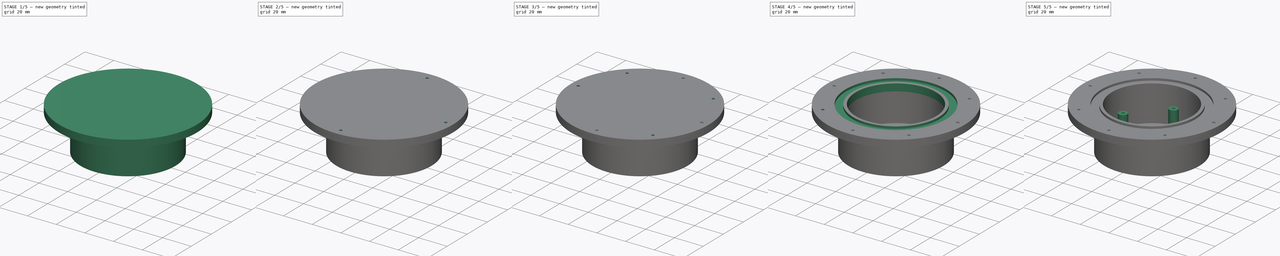
[diagram: build sequence overview — one tinted view per stage of 5, left to right]
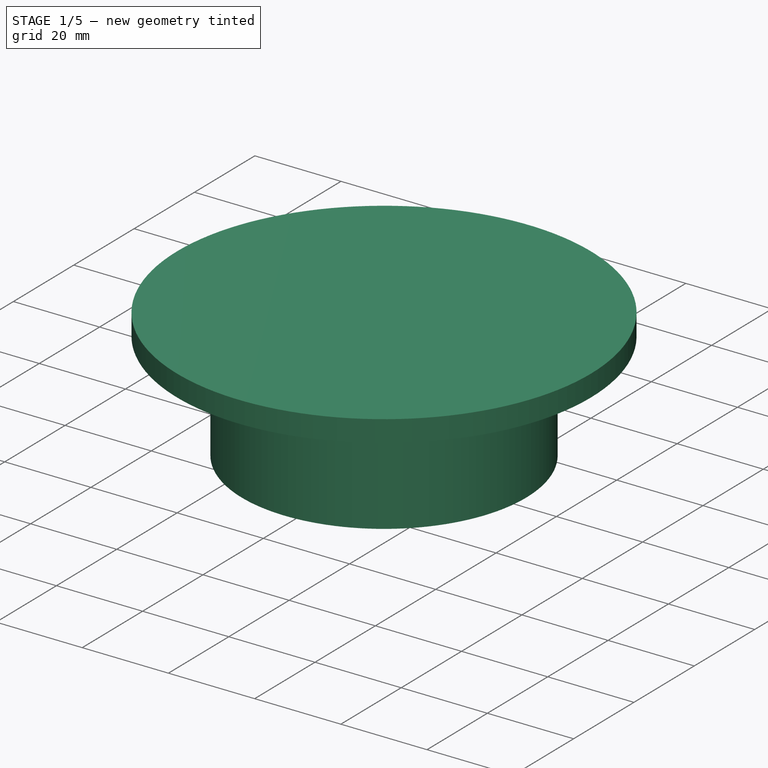
[diagram: stage 1 of 5 — iso view after this stage's code; geometry added in this stage tinted green]
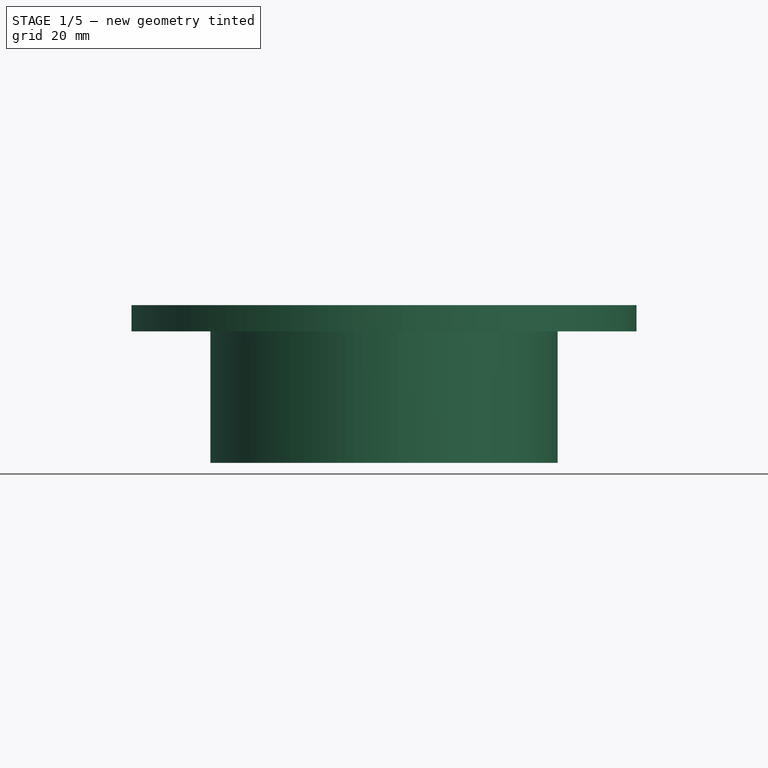
[diagram: stage 1 of 5 — front view after this stage's code; geometry added in this stage tinted green]
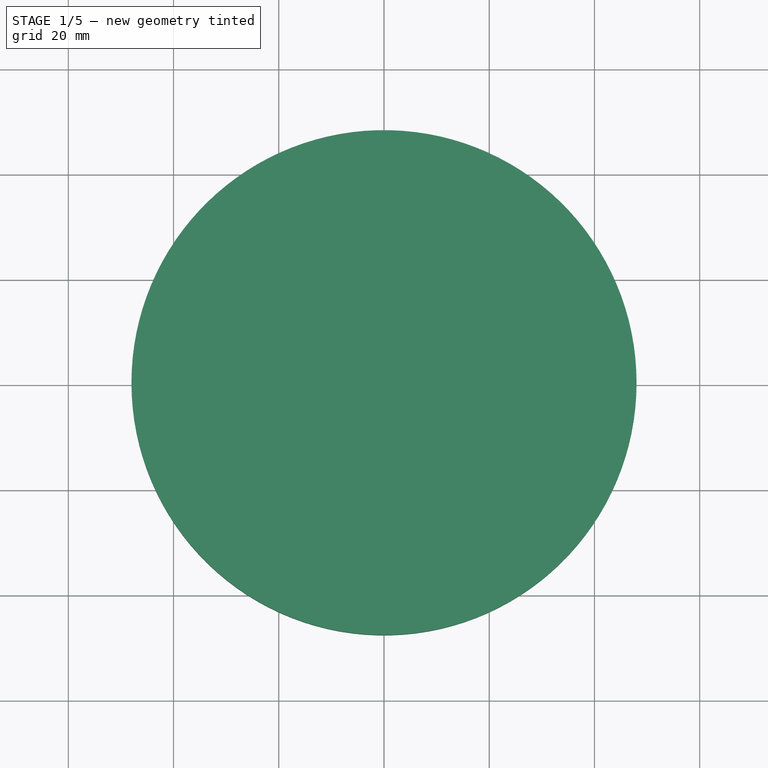
[diagram: stage 1 of 5 — top view after this stage's code; geometry added in this stage tinted green]
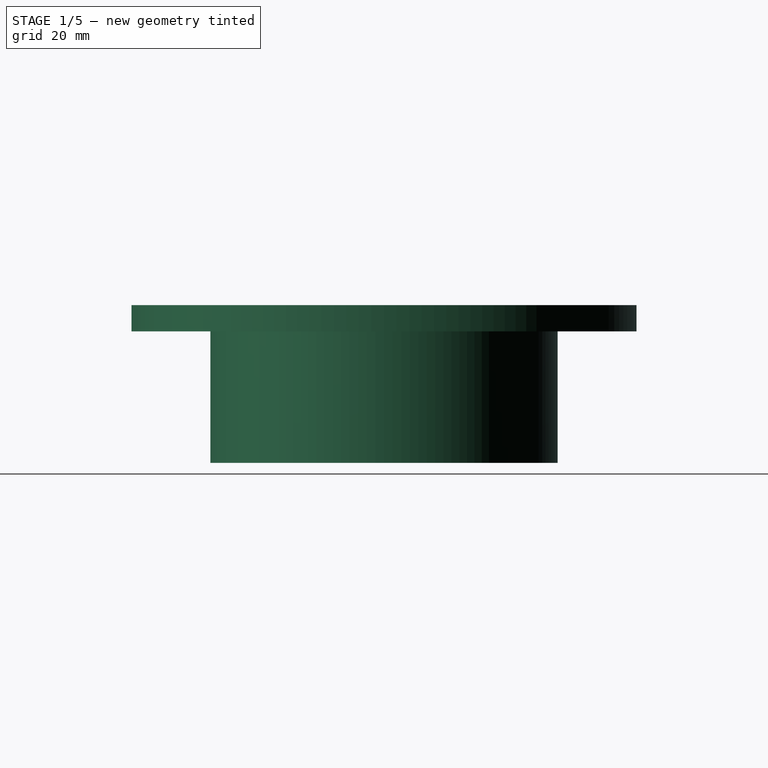
[diagram: stage 1 of 5 — right view after this stage's code; geometry added in this stage tinted green]
FCSTD DOCUMENT  (FreeCAD 0.19R24366 (Git))
Label: enclosure1
License: All rights reserved
LicenseURL: http://en.wikipedia.org/wiki/All_rights_reserved
objects: Sketcher::SketchObject×18, PartDesign::Pocket×11, Part::Feature×5, App::Part×5, App::Link×4, PartDesign::Pad×3, PartDesign::ShapeBinder×2, PartDesign::Groove×1, PartDesign::CoordinateSystem×1, PartDesign::Hole×1, PartDesign::Body×1
note: 59 computed .brp shape members not serialized (recipe doc carries the construction recipe); baked Part::Feature solids carry a one-line shape summary decoded from their .brp

FEATURE [Sketcher::SketchObject] Sketch
  FullyConstrained = true
  MapMode = 5
  Support = -> [XY_Plane]
  sketch-geometry (1):
    g0: Circle CenterX=0 CenterY=0 CenterZ=0 NormalX=0 NormalY=0 NormalZ=1 AngleXU=0 Radius=33
  constraints (2):
    c: Coincident(g0,g-1)
    c: Radius(g0) = 33
FEATURE [PartDesign::Pad] Pad
  Direction = (1,1,1)
  Length = 25
  Length2 = 100
  Profile = -> Sketch
  Reversed = true
  Type = 0
FEATURE [Sketcher::SketchObject] Sketch001
  FullyConstrained = true
  MapMode = 5
  Support = -> [XY_Plane]
  sketch-geometry (1):
    g0: Circle CenterX=0 CenterY=0 CenterZ=0 NormalX=0 NormalY=0 NormalZ=1 AngleXU=0 Radius=28
  constraints (2):
    c: Coincident(g0,g-1)
    c: Radius(g0) = 28
FEATURE [PartDesign::Pocket] Pocket
  BaseFeature = -> Pad
  Length = 20
  Length2 = 100
  Profile = -> Sketch001
  Type = 0
FEATURE [Sketcher::SketchObject] Sketch002
  FullyConstrained = true
  MapMode = 5
  Support = -> [XY_Plane]
  sketch-geometry (1):
    g0: Circle CenterX=0 CenterY=0 CenterZ=0 NormalX=0 NormalY=0 NormalZ=1 AngleXU=0 Radius=48
  constraints (2):
    c: Coincident(g0,g-1)
    c: Radius(g0) = 48
FEATURE [PartDesign::Pad] Pad001
  BaseFeature = -> Pocket
  Direction = (1,1,1)
  Length = 5
  Length2 = 100
  Profile = -> Sketch002
  Type = 0
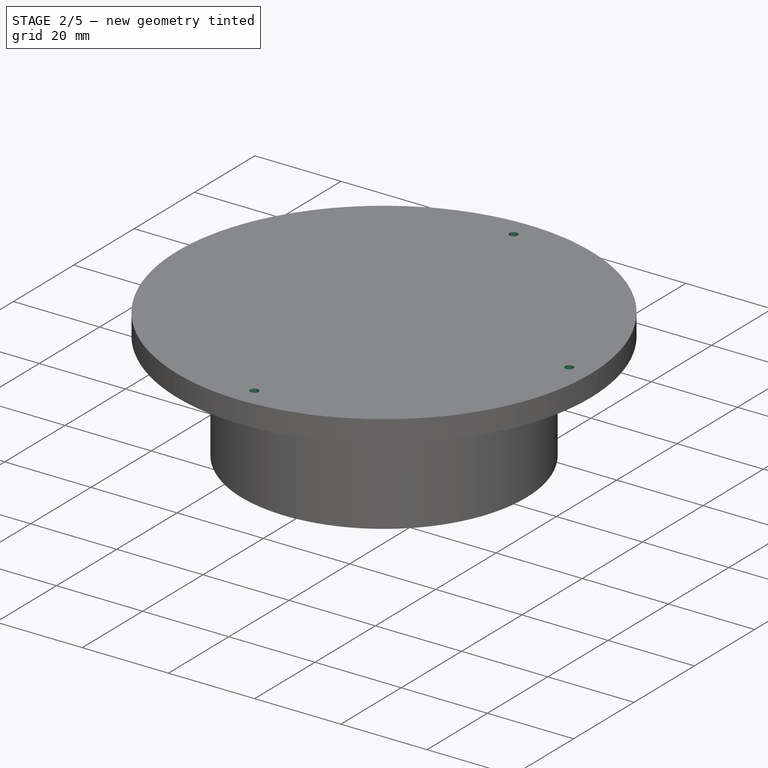
[diagram: stage 2 of 5 — iso view after this stage's code; geometry added in this stage tinted green]
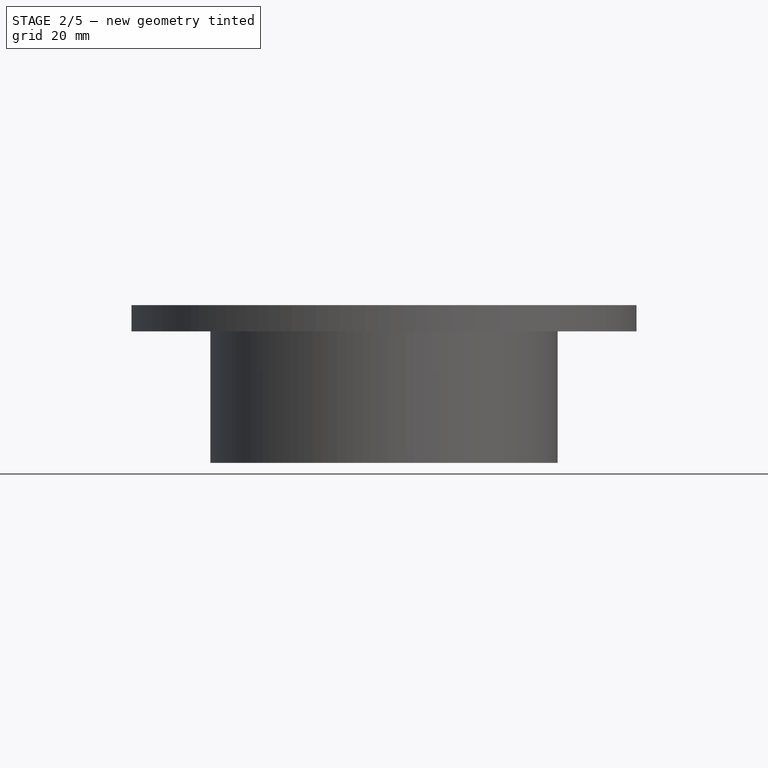
[diagram: stage 2 of 5 — front view after this stage's code; geometry added in this stage tinted green]
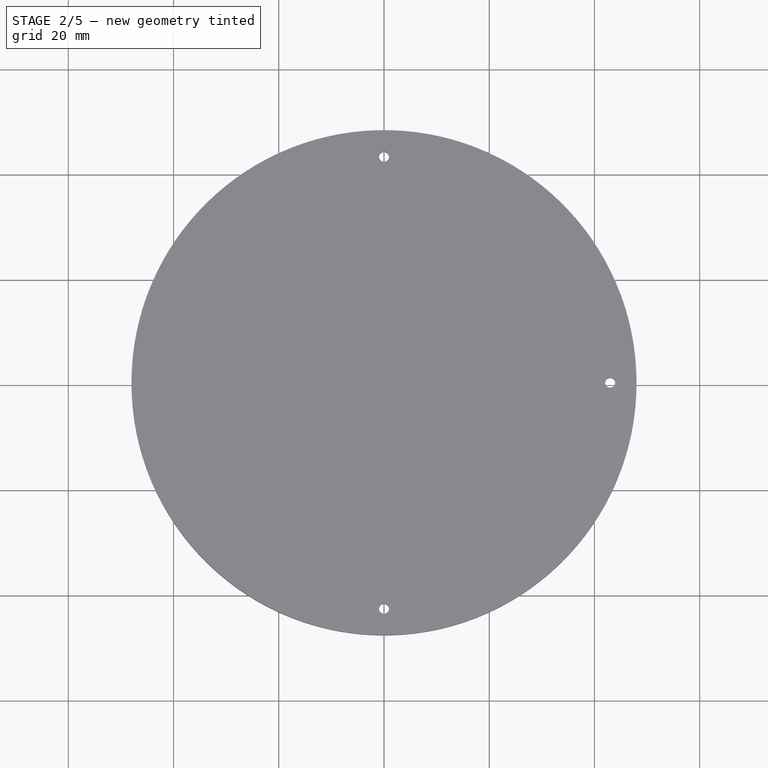
[diagram: stage 2 of 5 — top view after this stage's code; geometry added in this stage tinted green]
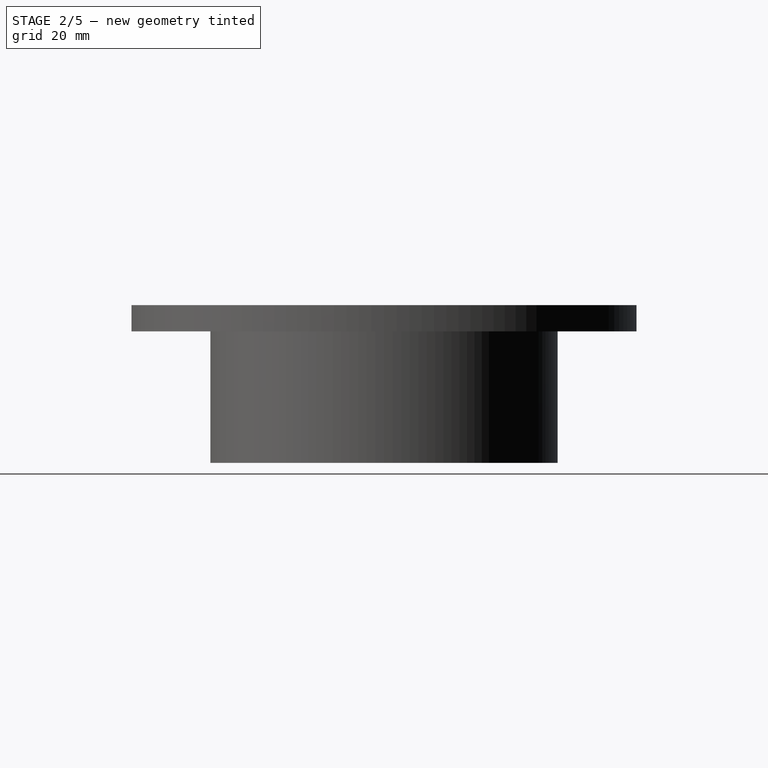
[diagram: stage 2 of 5 — right view after this stage's code; geometry added in this stage tinted green]
FEATURE [Sketcher::SketchObject] Sketch003
  FullyConstrained = true
  MapMode = 5
  Support = -> [XY_Plane]
  sketch-geometry (1):
    g0: Circle CenterX=0 CenterY=0 CenterZ=0 NormalX=0 NormalY=0 NormalZ=1 AngleXU=0 Radius=28
  constraints (2):
    c: Coincident(g0,g-1)
    c: Radius(g0) = 28
FEATURE [PartDesign::ShapeBinder] ShapeBinder
  TraceSupport = false
FEATURE [Sketcher::SketchObject] Sketch005
  FullyConstrained = false
  MapMode = 5
  Placement = pos=(0,0,5) rot=(0,0,1;0rad)
  Support = -> [ShapeBinder]
  sketch-geometry (1):
    g0: Circle CenterX=0 CenterY=42.9435 CenterZ=0 NormalX=0 NormalY=0 NormalZ=1 AngleXU=0 Radius=0.95
  constraints (2):
    c: PointOnObject(g0,g-2)
    c: Diameter(g0) = 1.9
FEATURE [PartDesign::Pocket] Pocket002
  BaseFeature = -> Pad001
  Length = 5
  Length2 = 100
  Profile = -> Sketch005
  Type = 0
FEATURE [Sketcher::SketchObject] Sketch006
  FullyConstrained = false
  MapMode = 5
  Placement = pos=(0,0,5) rot=(0,0,1;0rad)
  Support = -> [ShapeBinder]
  sketch-geometry (1):
    g0: Circle CenterX=0 CenterY=-42.9576 CenterZ=0 NormalX=0 NormalY=0 NormalZ=1 AngleXU=0 Radius=0.95
  constraints (2):
    c: PointOnObject(g0,g-2)
    c: Diameter(g0) = 1.9
FEATURE [PartDesign::Pocket] Pocket003
  BaseFeature = -> Pocket002
  Length = 5
  Length2 = 100
  Profile = -> Sketch006
  Type = 0
FEATURE [Sketcher::SketchObject] Sketch007
  FullyConstrained = false
  MapMode = 5
  Placement = pos=(0,0,5) rot=(0,0,1;0rad)
  Support = -> [ShapeBinder]
  sketch-geometry (1):
    g0: Circle CenterX=42.9898 CenterY=0 CenterZ=0 NormalX=0 NormalY=0 NormalZ=1 AngleXU=0 Radius=0.95
  constraints (2):
    c: PointOnObject(g0,g-1)
    c: Diameter(g0) = 1.9
FEATURE [PartDesign::Pocket] Pocket004
  BaseFeature = -> Pocket003
  Length = 5
  Length2 = 100
  Profile = -> Sketch007
  Type = 0
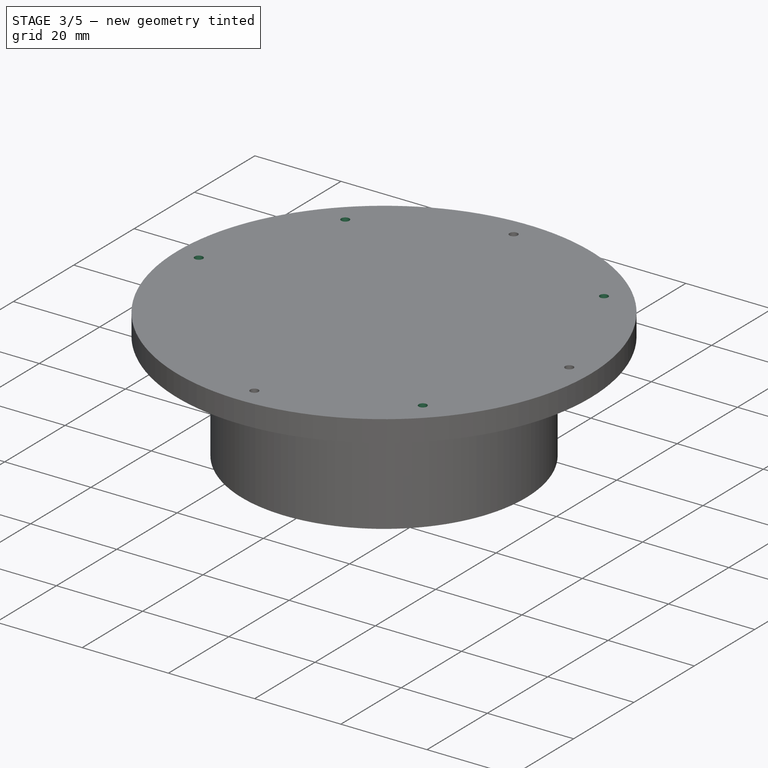
[diagram: stage 3 of 5 — iso view after this stage's code; geometry added in this stage tinted green]
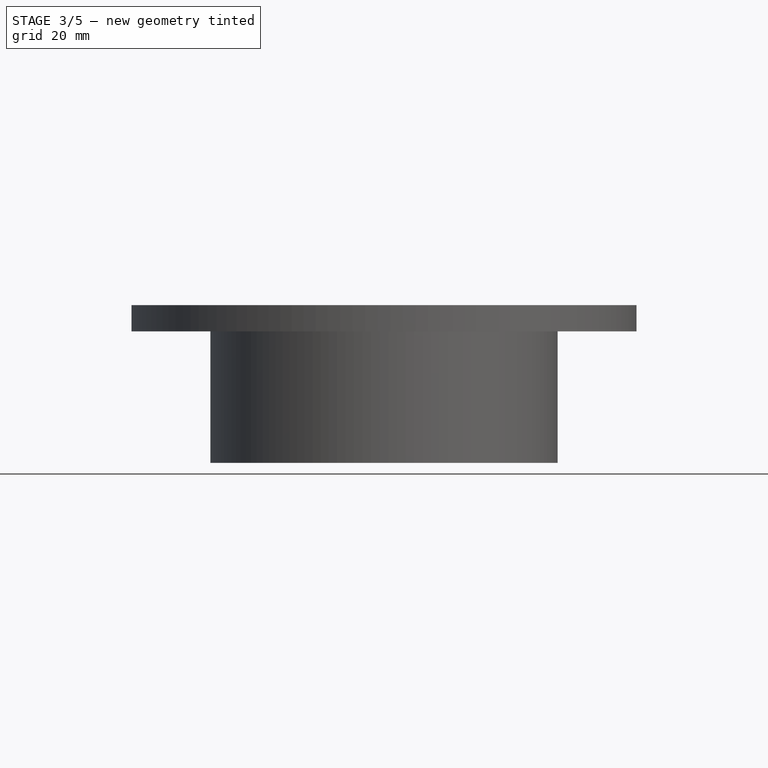
[diagram: stage 3 of 5 — front view after this stage's code; geometry added in this stage tinted green]
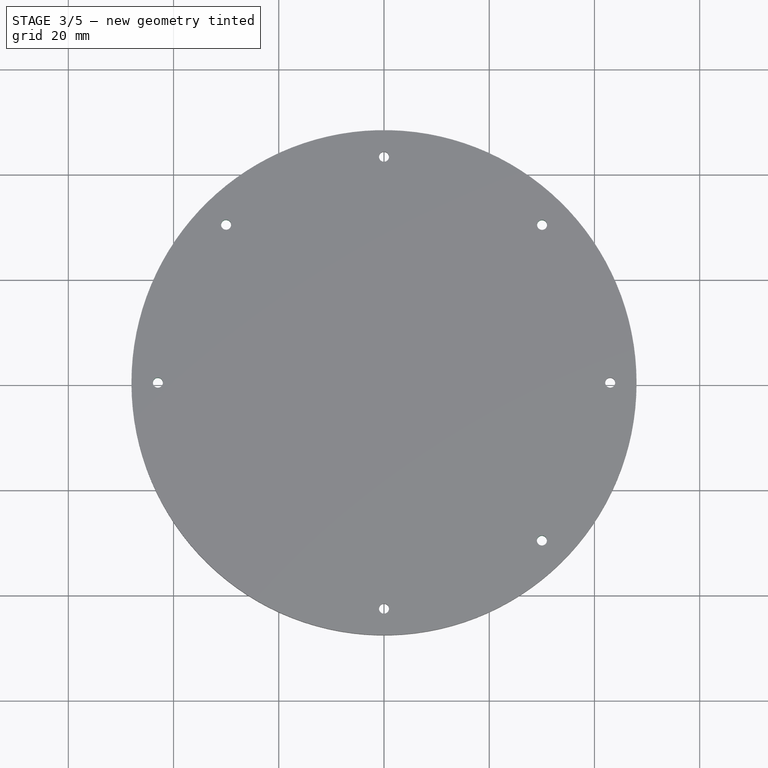
[diagram: stage 3 of 5 — top view after this stage's code; geometry added in this stage tinted green]
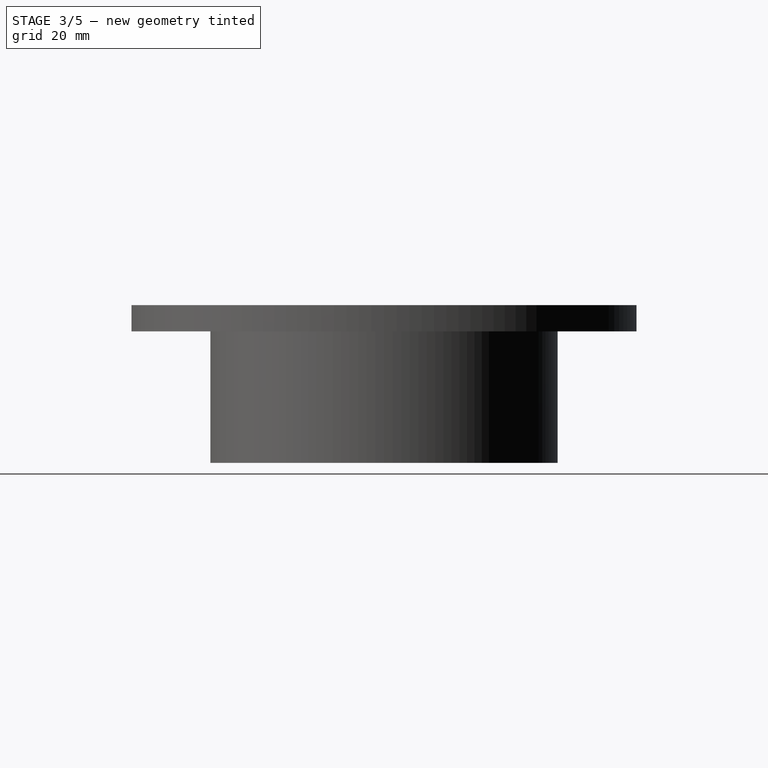
[diagram: stage 3 of 5 — right view after this stage's code; geometry added in this stage tinted green]
FEATURE [Sketcher::SketchObject] Sketch008
  FullyConstrained = false
  MapMode = 5
  Placement = pos=(0,0,5) rot=(0,0,1;0rad)
  Support = -> [ShapeBinder]
  sketch-geometry (1):
    g0: Circle CenterX=-42.9736 CenterY=0 CenterZ=0 NormalX=0 NormalY=0 NormalZ=1 AngleXU=0 Radius=0.95
  constraints (2):
    c: PointOnObject(g0,g-1)
    c: Diameter(g0) = 1.9
FEATURE [PartDesign::Pocket] Pocket005
  BaseFeature = -> Pocket004
  Length = 5
  Length2 = 100
  Profile = -> Sketch008
  Type = 0
FEATURE [Sketcher::SketchObject] Sketch010
  FullyConstrained = false
  MapMode = 5
  Placement = pos=(0,0,5) rot=(0,0,1;0rad)
  Support = -> [ShapeBinder]
  sketch-geometry (1):
    g0: Circle CenterX=30.044 CenterY=29.9904 CenterZ=0 NormalX=0 NormalY=0 NormalZ=1 AngleXU=0 Radius=0.95
  constraints (1):
    c: Diameter(g0) = 1.9
FEATURE [PartDesign::Pocket] Pocket006
  BaseFeature = -> Pocket005
  Length = 5
  Length2 = 100
  Profile = -> Sketch010
  Type = 0
FEATURE [Sketcher::SketchObject] Sketch011
  FullyConstrained = false
  MapMode = 5
  Placement = pos=(0,0,5) rot=(0,0,1;0rad)
  Support = -> [ShapeBinder]
  sketch-geometry (1):
    g0: Circle CenterX=-30.0137 CenterY=30.0171 CenterZ=0 NormalX=0 NormalY=0 NormalZ=1 AngleXU=0 Radius=0.95
  constraints (1):
    c: Diameter(g0) = 1.9
FEATURE [PartDesign::Pocket] Pocket007
  BaseFeature = -> Pocket006
  Length = 5
  Length2 = 100
  Profile = -> Sketch011
  Type = 0
FEATURE [Sketcher::SketchObject] Sketch012
  FullyConstrained = false
  MapMode = 5
  Placement = pos=(0,0,5) rot=(0,0,1;0rad)
  Support = -> [ShapeBinder]
  sketch-geometry (1):
    g0: Circle CenterX=30.0099 CenterY=-30.0046 CenterZ=0 NormalX=0 NormalY=0 NormalZ=1 AngleXU=0 Radius=0.95
  constraints (1):
    c: Diameter(g0) = 1.9
FEATURE [PartDesign::Pocket] Pocket008
  BaseFeature = -> Pocket007
  Length = 5
  Length2 = 100
  Profile = -> Sketch012
  Type = 0
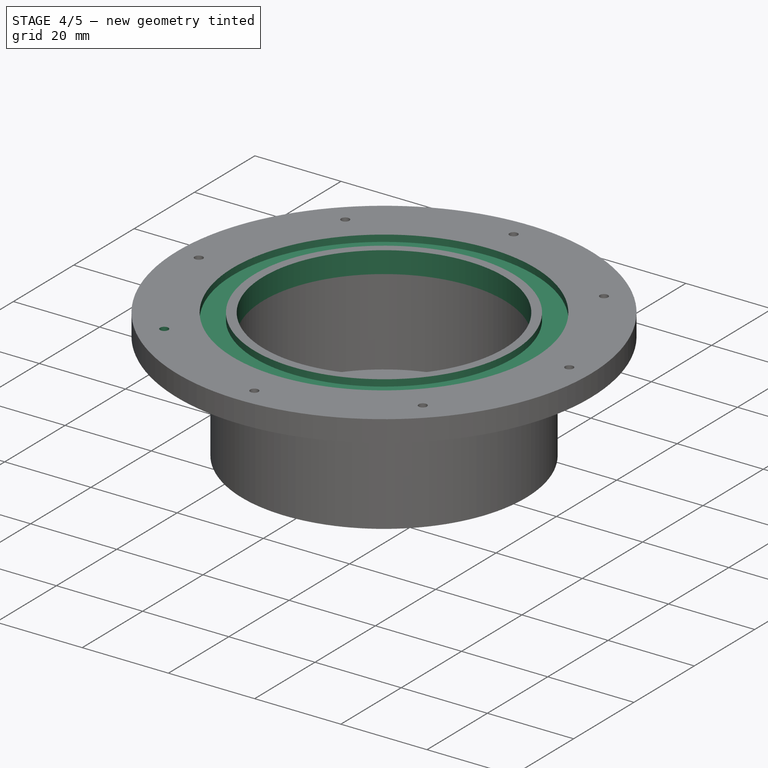
[diagram: stage 4 of 5 — iso view after this stage's code; geometry added in this stage tinted green]
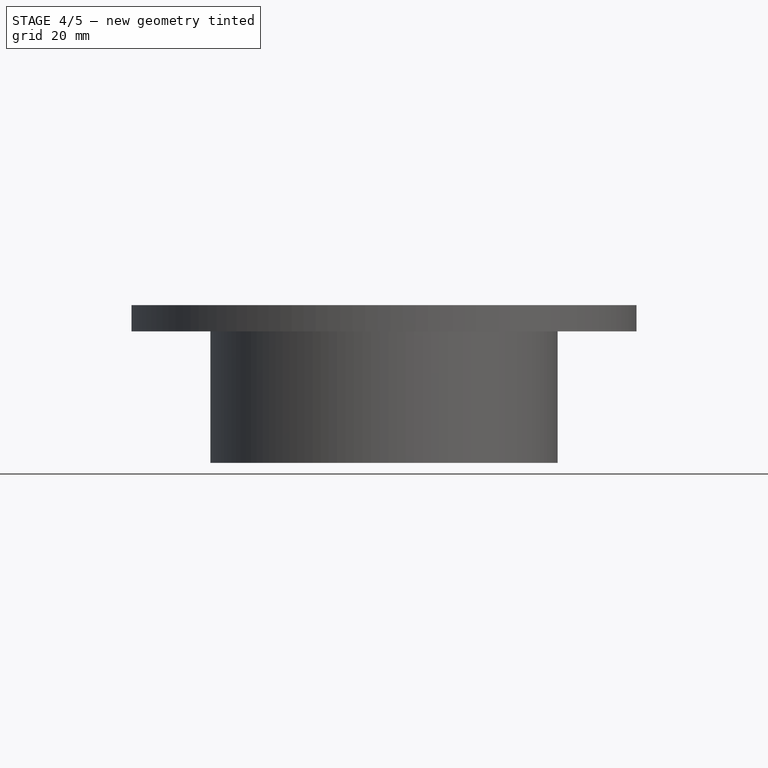
[diagram: stage 4 of 5 — front view after this stage's code; geometry added in this stage tinted green]
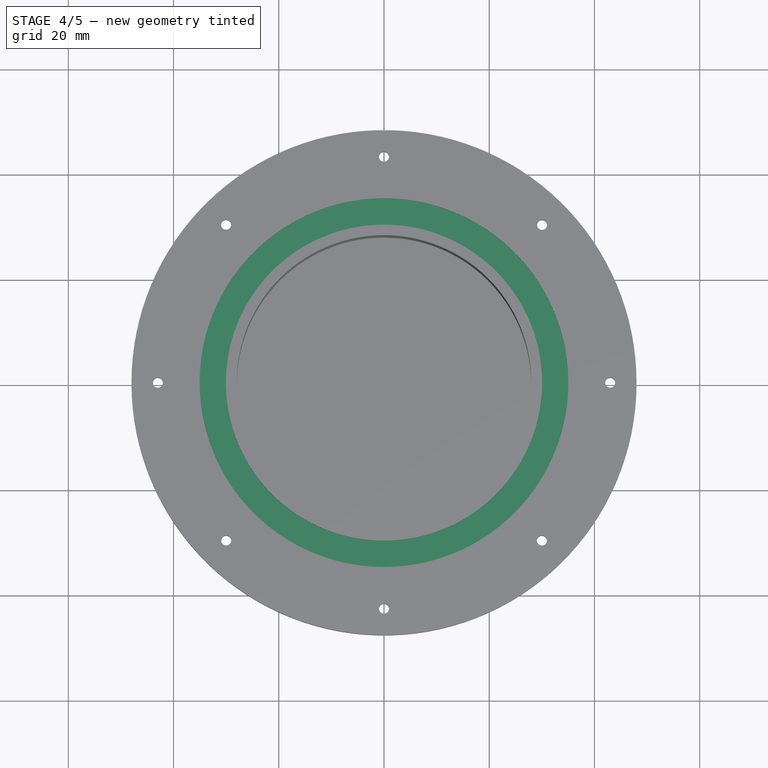
[diagram: stage 4 of 5 — top view after this stage's code; geometry added in this stage tinted green]
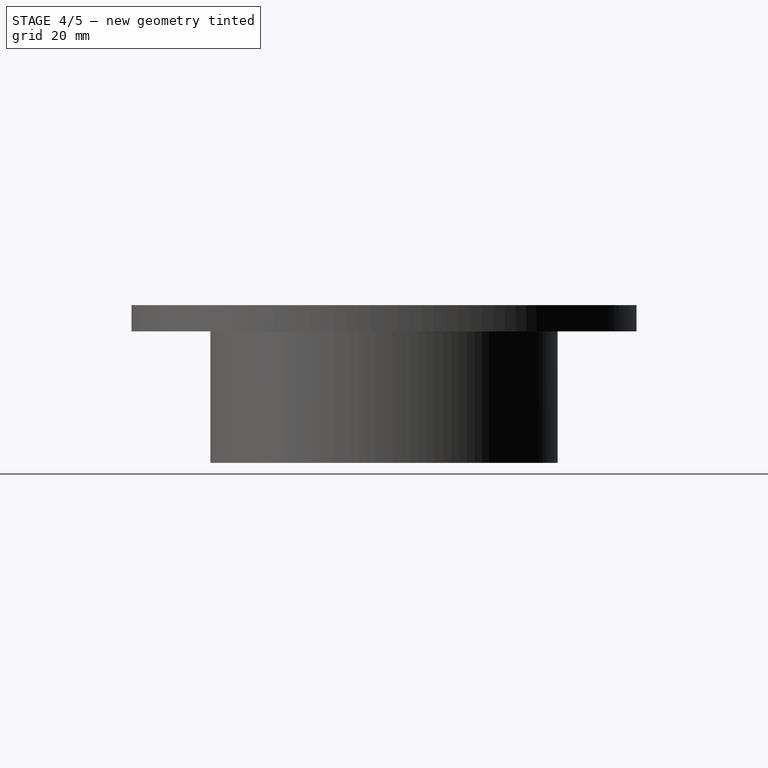
[diagram: stage 4 of 5 — right view after this stage's code; geometry added in this stage tinted green]
FEATURE [Sketcher::SketchObject] Sketch013
  FullyConstrained = false
  MapMode = 5
  Placement = pos=(0,0,5) rot=(0,0,1;0rad)
  Support = -> [ShapeBinder]
  sketch-geometry (1):
    g0: Circle CenterX=-29.9845 CenterY=-30.0004 CenterZ=0 NormalX=0 NormalY=0 NormalZ=1 AngleXU=0 Radius=0.95
  constraints (1):
    c: Diameter(g0) = 1.9
FEATURE [PartDesign::Pocket] Pocket009
  BaseFeature = -> Pocket008
  Length = 5
  Length2 = 100
  Profile = -> Sketch013
  Type = 0
FEATURE [Sketcher::SketchObject] Sketch015
  FullyConstrained = false
  MapMode = 5
  Placement = pos=(0,0,0) rot=(0.57735,0.57735,0.57735;2.0944rad)
  Support = -> [YZ_Plane]
  sketch-geometry (4):
    g0: LineSegment StartX=30.0443 StartY=5.00876 StartZ=0 EndX=35.0402 EndY=5.00876 EndZ=0
    g1: LineSegment StartX=35.0402 StartY=5.00876 StartZ=0 EndX=35.0402 EndY=3.46525 EndZ=0
    g2: LineSegment StartX=35.0402 StartY=3.46525 StartZ=0 EndX=30.0443 EndY=3.46525 EndZ=0
    g3: LineSegment StartX=30.0443 StartY=3.46525 StartZ=0 EndX=30.0443 EndY=5.00876 EndZ=0
  constraints (8):
    c: Coincident(g0,g1)
    c: Coincident(g1,g2)
    c: Coincident(g2,g3)
    c: Coincident(g3,g0)
    c: Horizontal(g0)
    c: Horizontal(g2)
    c: Vertical(g1)
    c: Vertical(g3)
FEATURE [PartDesign::Groove] Groove
  Angle = 360
  Axis = (-2e-16,3e-16,1)
  Base = (0,0,0)
  BaseFeature = -> Pocket009
  Profile = -> Sketch015
  ReferenceAxis = -> Sketch015 [V_Axis]
FEATURE [Sketcher::SketchObject] Sketch016
  FullyConstrained = true
  MapMode = 5
  Placement = pos=(0,0,5) rot=(0,0,1;0rad)
  Support = -> [ShapeBinder]
  sketch-geometry (1):
    g0: Circle CenterX=0 CenterY=0 CenterZ=0 NormalX=0 NormalY=0 NormalZ=1 AngleXU=0 Radius=28
  constraints (2):
    c: Coincident(g0,g-1)
    c: Radius(g0) = 28
FEATURE [PartDesign::Pocket] Pocket010
  BaseFeature = -> Groove
  Length = 5
  Length2 = 100
  Profile = -> Sketch016
  Type = 0
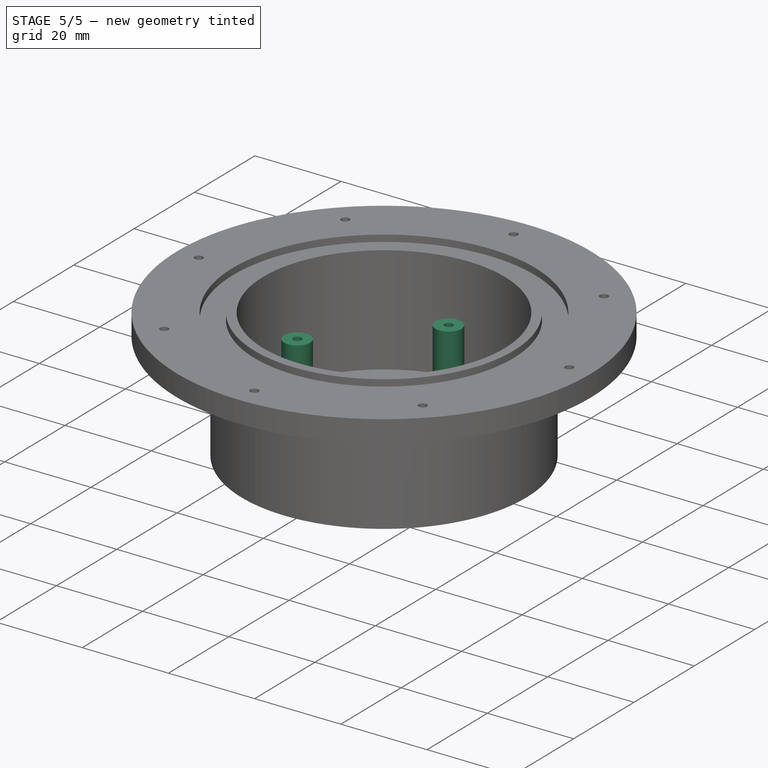
[diagram: stage 5 of 5 — iso view after this stage's code; geometry added in this stage tinted green]
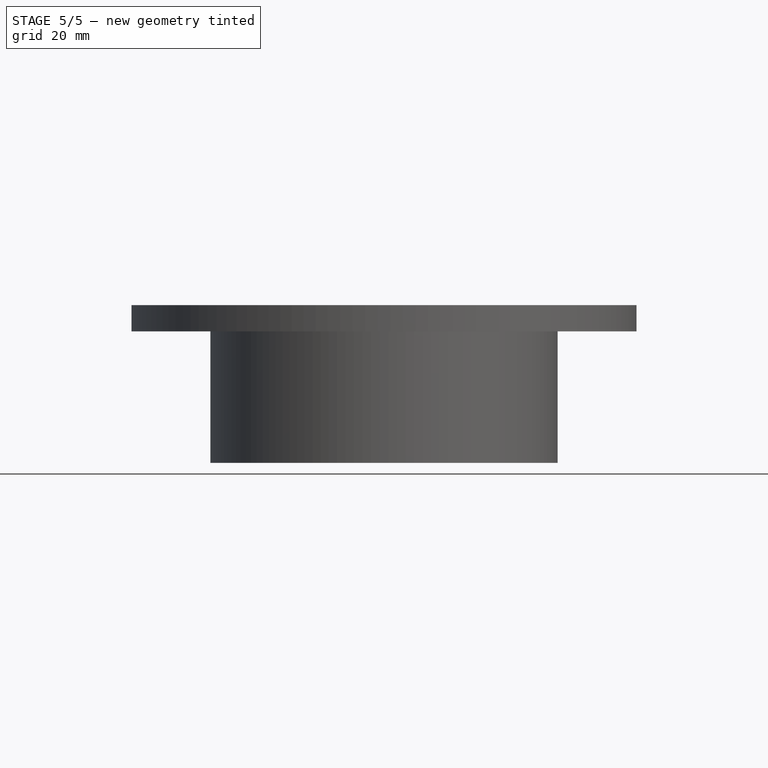
[diagram: stage 5 of 5 — front view after this stage's code; geometry added in this stage tinted green]
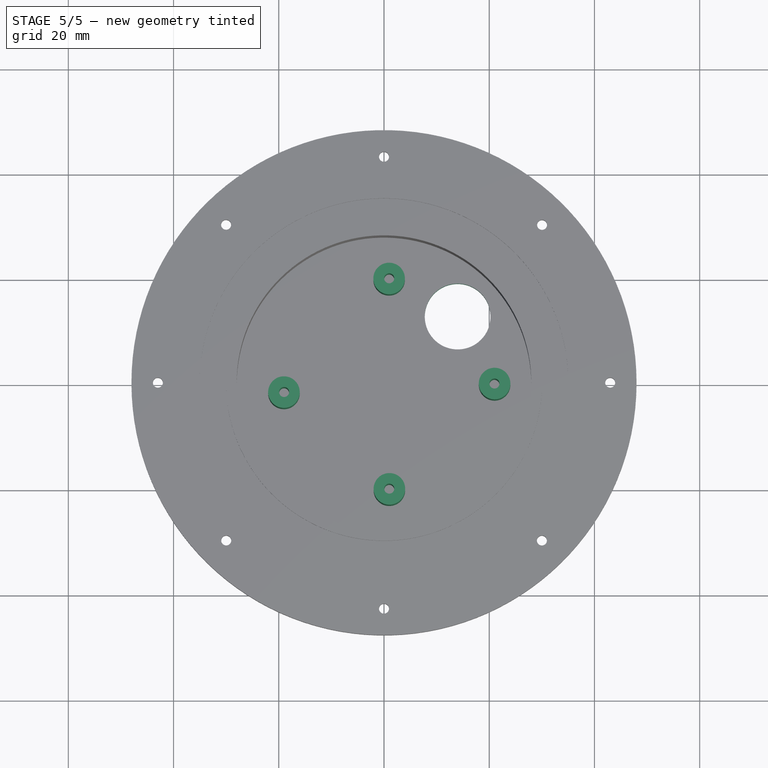
[diagram: stage 5 of 5 — top view after this stage's code; geometry added in this stage tinted green]
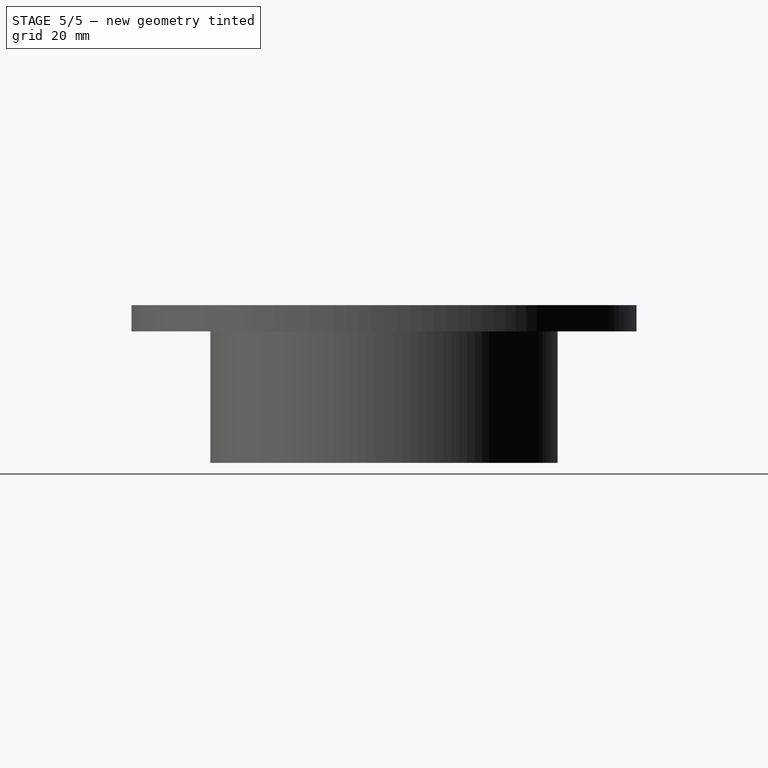
[diagram: stage 5 of 5 — right view after this stage's code; geometry added in this stage tinted green]
FEATURE [PartDesign::ShapeBinder] ShapeBinder001
  Placement = pos=(0,0,-20) rot=(0,0,1;0rad)
  Support = -> [Pocket010]
  TraceSupport = false
FEATURE [PartDesign::CoordinateSystem] Local_CS_9147
  AttacherType = Attacher::AttachEngine3D
FEATURE [Part::Feature] Pcb_9147
  shape: bbox 50 x 50 x 1.6 mm, 51 faces (baked)
FEATURE [Sketcher::SketchObject] PCB_Sketch_9147
  FullyConstrained = false
  sketch-geometry (1):
    g0: Circle CenterX=150 CenterY=-90 CenterZ=0 NormalX=0 NormalY=0 NormalZ=1 AngleXU=0 Radius=25
FEATURE [App::Part] Board_Geoms_9147
  Group = -> [Local_CS_9147,Pcb_9147,PCB_Sketch_9147]
  Origin = -> Origin002
FEATURE [Part::Feature] Shape  label="R2_R_0603_1608Metric_18504254b625"
  Placement = pos=(163,-94,0) rot=(0,0,1;1.5708rad)
  shape: bbox 0.8 x 1.6 x 0.45 mm, 26 faces (baked)
FEATURE [App::Link] R2_R_0603_1608Metric_18504254b625_ln_  label="R1_R_0603_1608Metric_ea0b41d80b0a"
  LinkPlacement = pos=(165,-94,0) rot=(0,0,1;1.5708rad)
  LinkedObject = -> Shape
  Placement = pos=(165,-94,0) rot=(0,0,1;1.5708rad)
FEATURE [Part::Feature] Shape001  label="C1_C_0603_1608Metric_25f668334653"
  Placement = pos=(133.985,-91.44,0) rot=(0,0,1;1.5708rad)
  shape: bbox 0.8 x 1.6 x 0.8 mm, 28 faces (baked)
FEATURE [Part::Feature] Shape002  label="U3_QFN-32-1EP_5x5mm_Pitch0.5mm_34379c8f1efa"
  Placement = pos=(161,-73,0) rot=(0,0,1;0rad)
  shape: bbox 5 x 5 x 0.77 mm, 206 faces (baked)
FEATURE [Part::Feature] Shape003  label="BT1_Keystone_1060_1x2032_c739e21a0837"
  Placement = pos=(150,-90,0) rot=(0,0,-1;1.5708rad)
  shape: bbox 17.96 x 31.86 x 5.08 mm, 94 faces (baked)
FEATURE [App::Part] Top_9147
  Group = -> [Shape,R2_R_0603_1608Metric_18504254b625_ln_,Shape001,Shape002,Shape003]
  Origin = -> Origin004
FEATURE [App::Link] C1_C_0603_1608Metric_25f668334653_ln_  label="C3_C_0603_1608Metric_906acf72987c"
  LinkPlacement = pos=(162,-72,-1.6) rot=(0.707107,0.707107,0;3.14159rad)
  LinkedObject = -> Shape001
  Placement = pos=(162,-72,-1.6) rot=(0.707107,0.707107,0;3.14159rad)
FEATURE [App::Link] C1_C_0603_1608Metric_25f668334653_ln_001  label="C4_C_0603_1608Metric_0a1d6cc33d50"
  LinkPlacement = pos=(161,-75,-1.6) rot=(0,1,0;3.14159rad)
  LinkedObject = -> Shape001
  Placement = pos=(161,-75,-1.6) rot=(0,1,0;3.14159rad)
FEATURE [App::Link] C1_C_0603_1608Metric_25f668334653_ln_002  label="C2_C_0603_1608Metric_d8f244a3c23f"
  LinkPlacement = pos=(160,-72,-1.6) rot=(0.707107,0.707107,0;3.14159rad)
  LinkedObject = -> Shape001
  Placement = pos=(160,-72,-1.6) rot=(0.707107,0.707107,0;3.14159rad)
FEATURE [App::Part] Bot_9147
  Group = -> [C1_C_0603_1608Metric_25f668334653_ln_,C1_C_0603_1608Metric_25f668334653_ln_001,C1_C_0603_1608Metric_25f668334653_ln_002]
  Origin = -> Origin005
FEATURE [App::Part] Step_Models_9147
  Group = -> [Top_9147,Bot_9147]
  Origin = -> Origin003
FEATURE [App::Part] Board_9147  label="lab7"
  Group = -> [Board_Geoms_9147,Step_Models_9147]
  Origin = -> Origin001
  Placement = pos=(-149,-90,-1) rot=(1,0,0;3.14159rad)
FEATURE [Sketcher::SketchObject] Sketch017
  FullyConstrained = false
  MapMode = 5
  Placement = pos=(0,0,-20) rot=(0,0,1;0rad)
  Support = -> [ShapeBinder001]
  sketch-geometry (4):
    g0: Circle CenterX=0.969611 CenterY=19.9684 CenterZ=0 NormalX=0 NormalY=0 NormalZ=1 AngleXU=0 Radius=3
    g1: Circle CenterX=21.0161 CenterY=0 CenterZ=0 NormalX=0 NormalY=0 NormalZ=1 AngleXU=0 Radius=3
    g2: Circle CenterX=1.0247 CenterY=-20.0202 CenterZ=0 NormalX=0 NormalY=0 NormalZ=1 AngleXU=0 Radius=3
    g3: Circle CenterX=-19.017 CenterY=-1.62548 CenterZ=0 NormalX=0 NormalY=0 NormalZ=1 AngleXU=0 Radius=3
  constraints (5):
    c: Radius(g0) = 3
    c: PointOnObject(g1,g-1)
    c: Radius(g1) = 3
    c: Radius(g2) = 3
    c: Radius(g3) = 3
FEATURE [PartDesign::Pad] Pad002
  BaseFeature = -> Pocket010
  Direction = (1,1,1)
  Length = 15
  Length2 = 100
  Profile = -> Sketch017
  Type = 0
FEATURE [Sketcher::SketchObject] Sketch018
  FullyConstrained = false
  MapMode = 5
  Placement = pos=(0,0,-20) rot=(0,0,1;0rad)
  Support = -> [ShapeBinder001]
  sketch-geometry (4):
    g0: Circle CenterX=0.986086 CenterY=20.01 CenterZ=0 NormalX=0 NormalY=0 NormalZ=1 AngleXU=0 Radius=0.95
    g1: Circle CenterX=20.9921 CenterY=0 CenterZ=0 NormalX=0 NormalY=0 NormalZ=1 AngleXU=0 Radius=0.95
    g2: Circle CenterX=1.0005 CenterY=-19.9759 CenterZ=0 NormalX=0 NormalY=0 NormalZ=1 AngleXU=0 Radius=0.95
    g3: Circle CenterX=-18.984 CenterY=-1.60483 CenterZ=0 NormalX=0 NormalY=0 NormalZ=1 AngleXU=0 Radius=0.95
  constraints (5):
    c: Radius(g0) = 0.95
    c: PointOnObject(g1,g-1)
    c: Radius(g1) = 0.95
    c: Radius(g2) = 0.95
    c: Radius(g3) = 0.95
FEATURE [PartDesign::Pocket] Pocket011
  BaseFeature = -> Pad002
  Length = 15
  Length2 = 100
  Profile = -> Sketch018
  Reversed = true
  Type = 0
FEATURE [Sketcher::SketchObject] Sketch019
  FullyConstrained = true
  MapMode = 5
  Placement = pos=(0,0,-20) rot=(0,0,1;0rad)
  Support = -> [ShapeBinder001]
  sketch-geometry (1):
    g0: Circle CenterX=14 CenterY=13 CenterZ=0 NormalX=0 NormalY=0 NormalZ=1 AngleXU=0 Radius=6.25
  constraints (3):
    c: Radius(g0) = 6.25
    c: DistanceX(g0,g-1) = -14
    c: DistanceY(g0,g-1) = -13
FEATURE [PartDesign::Hole] Hole
  BaseFeature = -> Pocket011
  Depth = 21
  DepthType = 1
  Diameter = 12.5
  DrillForDepth = false
  DrillPoint = 1
  DrillPointAngle = 118
  HoleCutCountersinkAngle = 90
  HoleCutCustomValues = false
  HoleCutDepth = 0
  HoleCutDiameter = 0
  HoleCutType = 0
  ModelActualThread = false
  Profile = -> Sketch019
  Tapered = false
  TaperedAngle = 90
  ThreadAngle = 0
  ThreadClass = 0
  ThreadCutOffInner = 0
  ThreadCutOffOuter = 0
  ThreadDirection = 0
  ThreadFit = 0
  ThreadPitch = 0
  ThreadSize = 0
  ThreadType = 0
  Threaded = false
FEATURE [PartDesign::Body] Body
  Group = -> [Sketch,Pad,Sketch001,Pocket,Sketch002,Pad001,Sketch003,ShapeBinder,Sketch005,Pocket002,Sketch006,Pocket003,Sketch007,Pocket004,Sketch008,Pocket005,Sketch010,Pocket006,Sketch011,Pocket007,Sketch012,Pocket008,Sketch013,Pocket009,Sketch015,Groove,Sketch016,Pocket010,ShapeBinder001,Sketch017,Pad002,Sketch018,Pocket011,Sketch019,Hole]
  Origin = -> Origin
  Tip = -> Hole
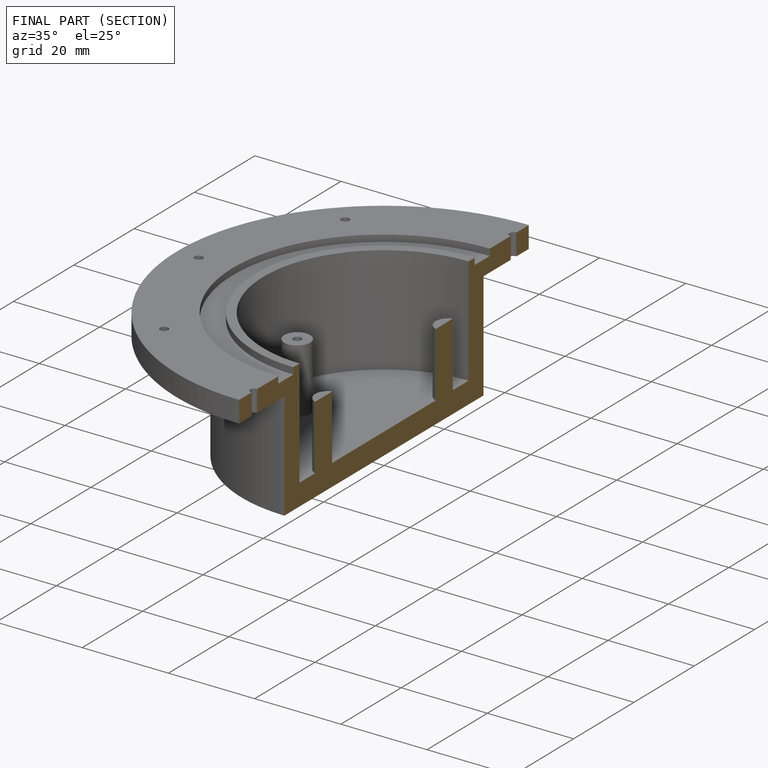
[diagram: finished part — half-section view (interior)]
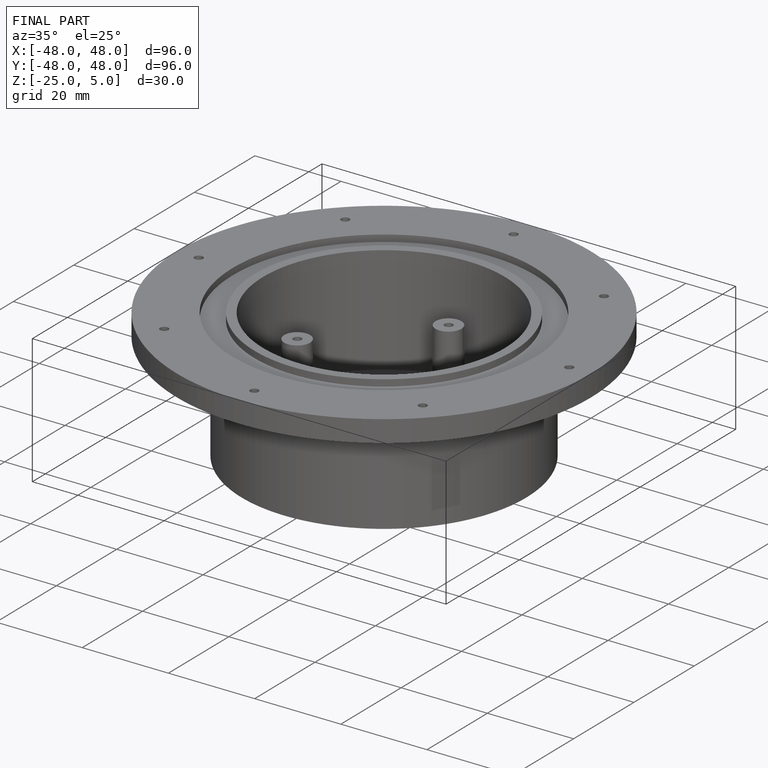
[diagram: finished part — iso view with bounding-box wireframe]
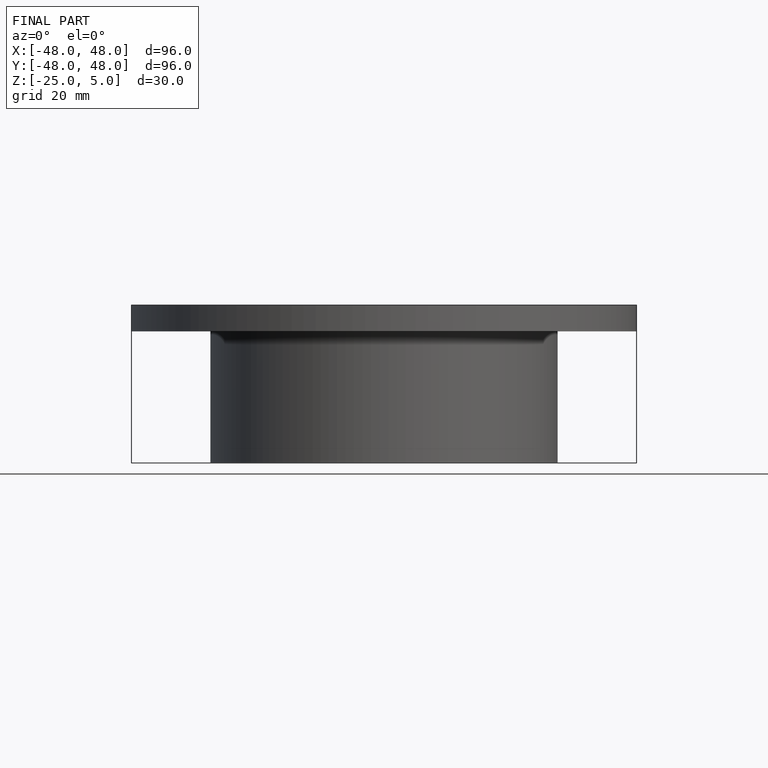
[diagram: finished part — front view with bounding-box wireframe]
